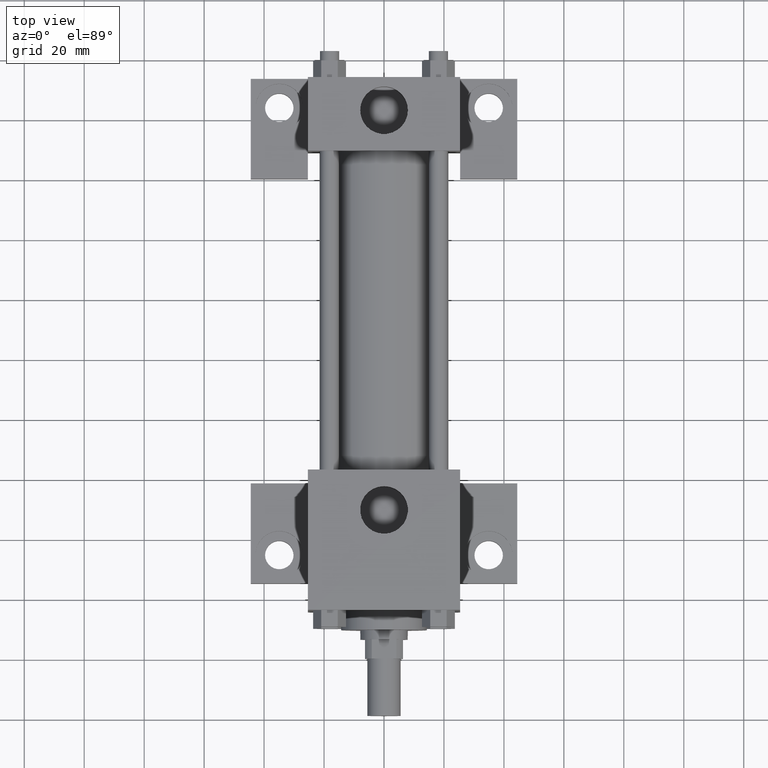
[diagram: clean part render]
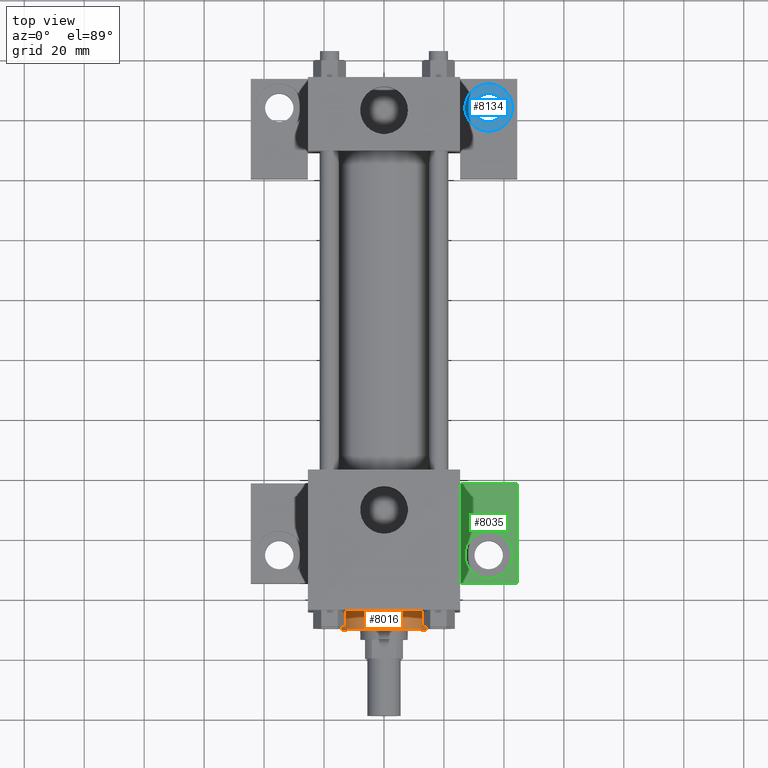
[diagram: same view with three faces highlighted in distinct colors, each labeled with its STEP entity id]
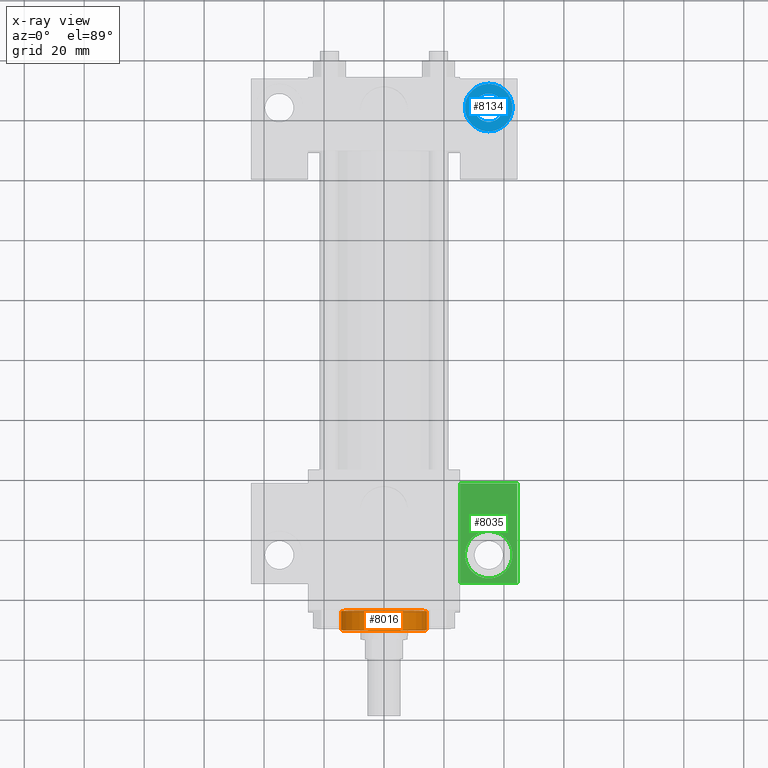
[diagram: x-ray of the same camera — body ghosted, the three highlighted faces saturated]
A machine part, top view with three faces highlighted in distinct colors.
The next image is the same camera in x-ray (body ghosted, the three faces saturated) — at least one of them is partly hidden behind the body in this view.
Their STEP definitions:

[orange] entity #8016 — the highlighted cylindrical surface (bore or boss wall) has radius 14.2875 mm, axis along (0, -1, 0).
#405=EDGE_CURVE('',#411,#411,#406,.T.);
#406=CIRCLE('',#407,1.428750000E+001);
#407=AXIS2_PLACEMENT_3D('',#408,#409,#410);
#408=CARTESIAN_POINT('',(0.000000000E+000,9.525000000E+000,0.000000000E+000));
#409=DIRECTION('',(0.0E+000,1.0E+000,0.0E+000));
#410=DIRECTION('',(1.0E+000,0.0E+000,0.0E+000));
#411=VERTEX_POINT('',#412);
#412=CARTESIAN_POINT('',(1.428750000E+001,9.525000000E+000,0.000000000E+000));
#419=FACE_OUTER_BOUND('',#421,.T.);
#420=FACE_BOUND('',#422,.T.);
#421=EDGE_LOOP('',(#423));
#422=EDGE_LOOP('',(#432));
#423=ORIENTED_EDGE('',*,*,#424,.F.);
#424=EDGE_CURVE('',#430,#430,#425,.T.);
#425=CIRCLE('',#426,1.428750000E+001);
#426=AXIS2_PLACEMENT_3D('',#427,#428,#429);
#427=CARTESIAN_POINT('',(0.000000000E+000,1.587500000E+001,0.000000000E+000));
#428=DIRECTION('',(0.0E+000,1.0E+000,0.0E+000));
#429=DIRECTION('',(1.0E+000,0.0E+000,0.0E+000));
#430=VERTEX_POINT('',#431);
#431=CARTESIAN_POINT('',(1.428750000E+001,1.587500000E+001,0.000000000E+000));
#432=ORIENTED_EDGE('',*,*,#405,.T.);
#433=CYLINDRICAL_SURFACE('',#434,1.428750000E+001);
#434=AXIS2_PLACEMENT_3D('',#435,#436,#437);
#435=CARTESIAN_POINT('',(0.000000000E+000,1.587500000E+001,0.000000000E+000));
#436=DIRECTION('',(0.0E+000,-1.0E+000,0.0E+000));
#437=DIRECTION('',(0.0E+000,0.0E+000,-1.0E+000));
#8016=ADVANCED_FACE('',(#419,#420),#433,.T.);

[blue] entity #8134 — the highlighted planar face has unit normal (0, 0, -1).
#5947=EDGE_CURVE('',#5953,#5953,#5948,.T.);
#5948=CIRCLE('',#5949,7.937500000E+000);
#5949=AXIS2_PLACEMENT_3D('',#5950,#5951,#5952);
#5950=CARTESIAN_POINT('',(3.492500000E+001,1.841500000E+002,-1.587500000E+001));
#5951=DIRECTION('',(0.0E+000,0.0E+000,1.0E+000));
#5952=DIRECTION('',(0.0E+000,-1.0E+000,0.0E+000));
#5953=VERTEX_POINT('',#5954);
#5954=CARTESIAN_POINT('',(3.492500000E+001,1.762125000E+002,-1.587500000E+001));
#5969=FACE_OUTER_BOUND('',#5971,.T.);
#5970=FACE_BOUND('',#5972,.T.);
#5971=EDGE_LOOP('',(#5973));
#5972=EDGE_LOOP('',(#5974));
#5973=ORIENTED_EDGE('',*,*,#5947,.T.);
#5974=ORIENTED_EDGE('',*,*,#5975,.F.);
#5975=EDGE_CURVE('',#5981,#5981,#5976,.F.);
#5976=CIRCLE('',#5977,4.762500000E+000);
#5977=AXIS2_PLACEMENT_3D('',#5978,#5979,#5980);
#5978=CARTESIAN_POINT('',(3.492500000E+001,1.841500000E+002,-1.587500000E+001));
#5979=DIRECTION('',(0.0E+000,0.0E+000,-1.0E+000));
#5980=DIRECTION('',(-1.0E+000,0.0E+000,0.0E+000));
#5981=VERTEX_POINT('',#5982);
#5982=CARTESIAN_POINT('',(3.968750000E+001,1.841500000E+002,-1.587500000E+001));
#5983=PLANE('',#5984);
#5984=AXIS2_PLACEMENT_3D('',#5985,#5986,#5987);
#5985=CARTESIAN_POINT('',(3.492500000E+001,1.841500000E+002,-1.587500000E+001));
#5986=DIRECTION('',(0.0E+000,0.0E+000,-1.0E+000));
#5987=DIRECTION('',(-1.0E+000,0.0E+000,0.0E+000));
#8134=ADVANCED_FACE('',(#5969,#5970),#5983,.F.);

[green] entity #8035 — the highlighted planar face has unit normal (0, 0, 1).
#2177=EDGE_CURVE('',#2183,#2183,#2178,.T.);
#2178=CIRCLE('',#2179,7.937500000E+000);
#2179=AXIS2_PLACEMENT_3D('',#2180,#2181,#2182);
#2180=CARTESIAN_POINT('',(3.492500000E+001,3.492500000E+001,-1.270000000E+001));
#2181=DIRECTION('',(0.0E+000,0.0E+000,-1.0E+000));
#2182=DIRECTION('',(0.0E+000,-1.0E+000,0.0E+000));
#2183=VERTEX_POINT('',#2184);
#2184=CARTESIAN_POINT('',(3.492500000E+001,2.698750000E+001,-1.270000000E+001));
#2411=FACE_OUTER_BOUND('',#2413,.T.);
#2412=FACE_BOUND('',#2414,.T.);
#2413=EDGE_LOOP('',(#2415));
#2414=EDGE_LOOP('',(#2416,#2417,#2418,#2419));
#2415=ORIENTED_EDGE('',*,*,#2177,.T.);
#2416=ORIENTED_EDGE('',*,*,#2420,.T.);
#2417=ORIENTED_EDGE('',*,*,#2429,.T.);
#2418=ORIENTED_EDGE('',*,*,#2436,.T.);
#2419=ORIENTED_EDGE('',*,*,#2443,.T.);
#2420=EDGE_CURVE('',#2425,#2426,#2421,.T.);
#2421=LINE('',#2422,#2423);
#2422=CARTESIAN_POINT('',(2.540000000E+001,2.540000000E+001,-1.270000000E+001));
#2423=VECTOR('',#2424,1.0E+000);
#2424=DIRECTION('',(1.0E+000,0.0E+000,0.0E+000));
#2425=VERTEX_POINT('',#2427);
#2426=VERTEX_POINT('',#2428);
#2427=CARTESIAN_POINT('',(2.540000000E+001,2.540000000E+001,-1.270000000E+001));
#2428=CARTESIAN_POINT('',(4.445000000E+001,2.540000000E+001,-1.270000000E+001));
#2429=EDGE_CURVE('',#2426,#2434,#2430,.T.);
#2430=LINE('',#2431,#2432);
#2431=CARTESIAN_POINT('',(4.445000000E+001,2.540000000E+001,-1.270000000E+001));
#2432=VECTOR('',#2433,1.0E+000);
#2433=DIRECTION('',(0.0E+000,1.0E+000,0.0E+000));
#2434=VERTEX_POINT('',#2435);
#2435=CARTESIAN_POINT('',(4.445000000E+001,5.873750000E+001,-1.270000000E+001));
#2436=EDGE_CURVE('',#2434,#2441,#2437,.T.);
#2437=LINE('',#2438,#2439);
#2438=CARTESIAN_POINT('',(4.445000000E+001,5.873750000E+001,-1.270000000E+001));
#2439=VECTOR('',#2440,1.0E+000);
#2440=DIRECTION('',(-1.0E+000,0.0E+000,0.0E+000));
#2441=VERTEX_POINT('',#2442);
#2442=CARTESIAN_POINT('',(2.540000000E+001,5.873750000E+001,-1.270000000E+001));
#2443=EDGE_CURVE('',#2441,#2425,#2444,.T.);
#2444=LINE('',#2445,#2446);
#2445=CARTESIAN_POINT('',(2.540000000E+001,5.873750000E+001,-1.270000000E+001));
#2446=VECTOR('',#2447,1.0E+000);
#2447=DIRECTION('',(0.0E+000,-1.0E+000,0.0E+000));
#2448=PLANE('',#2449);
#2449=AXIS2_PLACEMENT_3D('',#2450,#2451,#2452);
#2450=CARTESIAN_POINT('',(4.445000000E+001,2.540000000E+001,-1.270000000E+001));
#2451=DIRECTION('',(0.0E+000,0.0E+000,1.0E+000));
#2452=DIRECTION('',(1.0E+000,0.0E+000,0.0E+000));
#8035=ADVANCED_FACE('',(#2411,#2412),#2448,.T.);